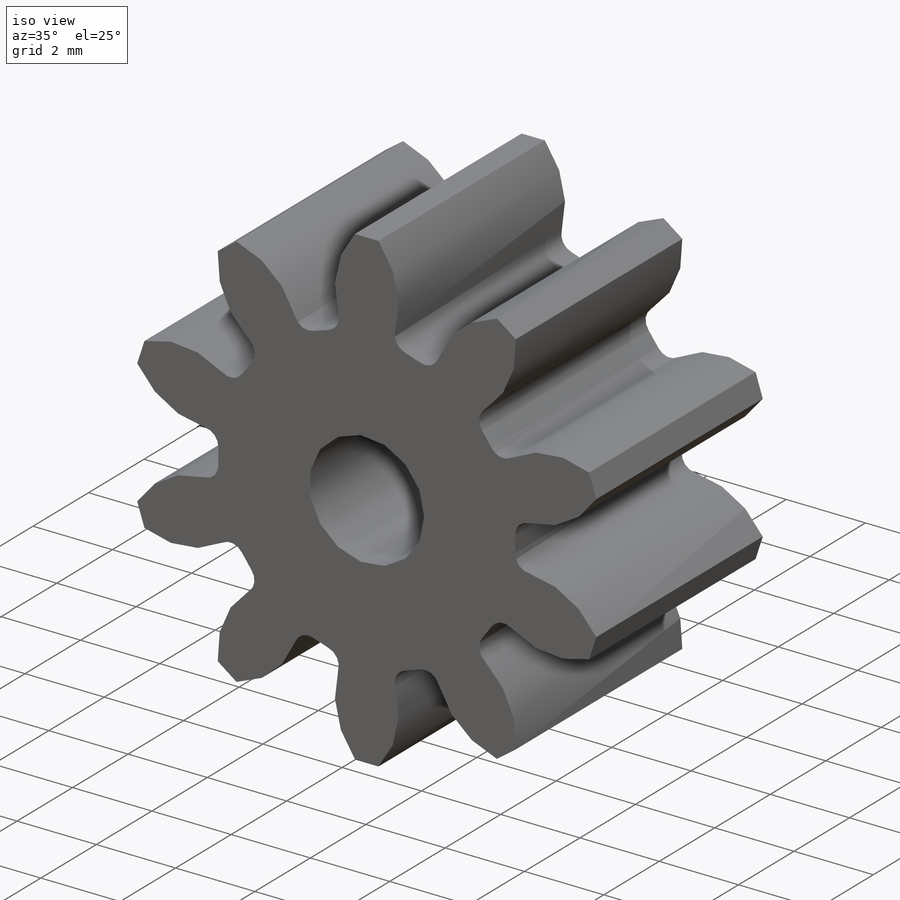
[diagram: iso view]
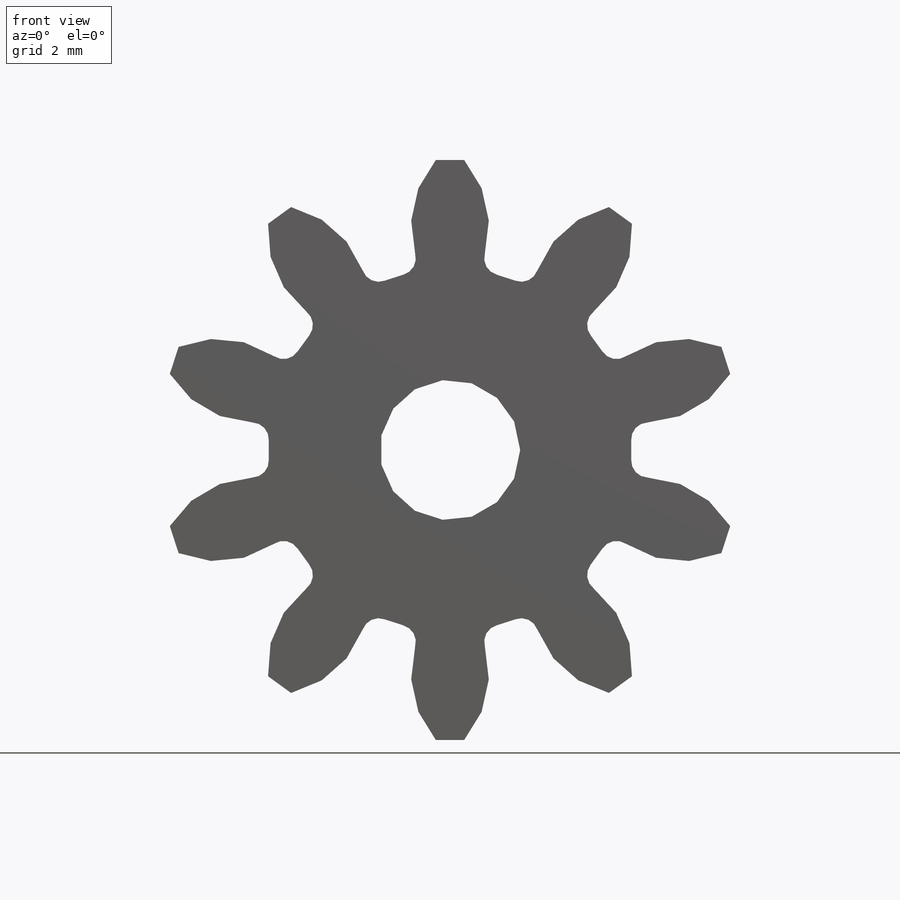
[diagram: front view]
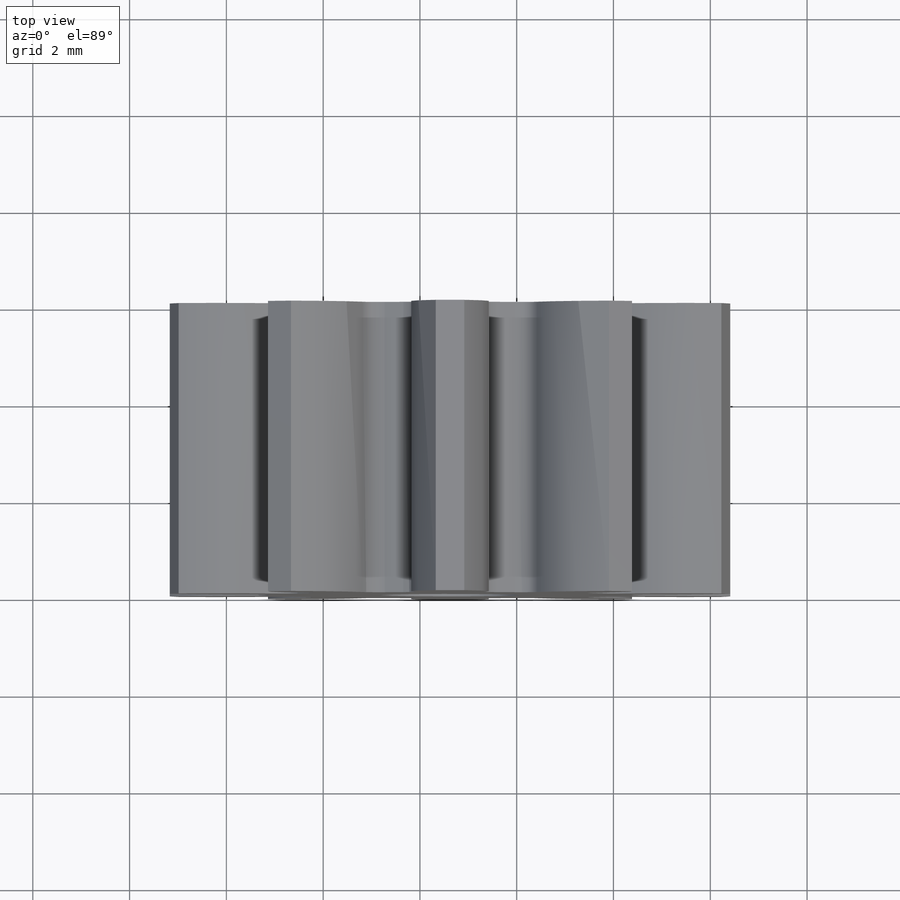
[diagram: top view]
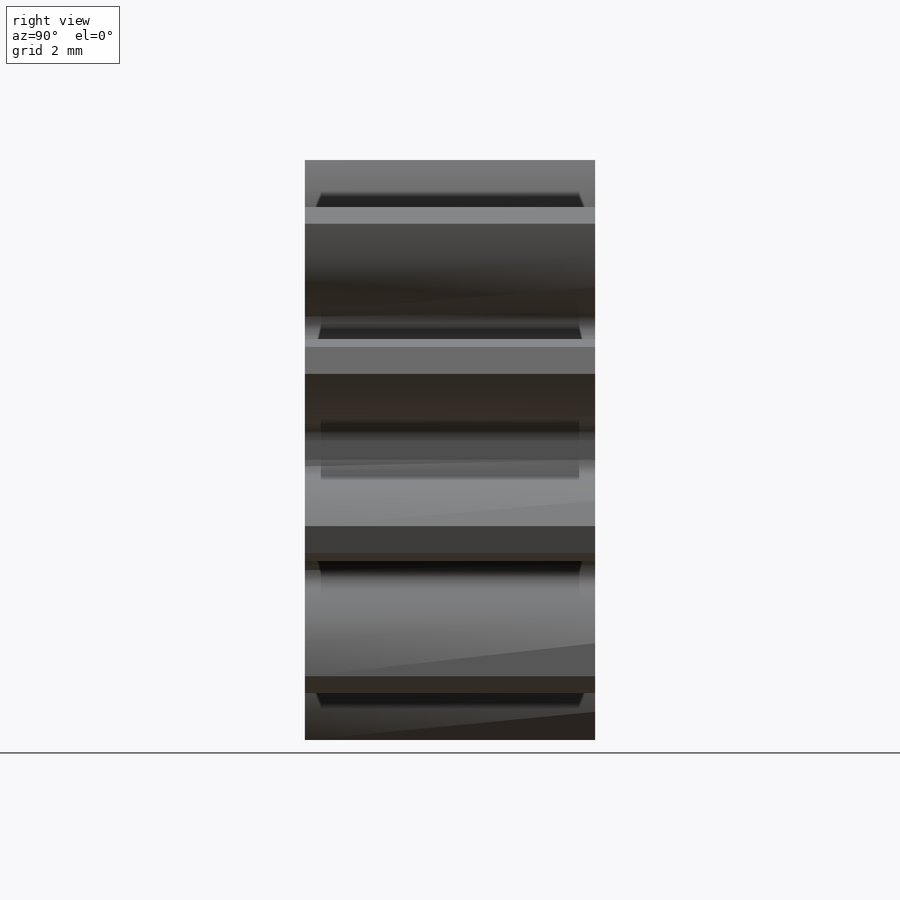
[diagram: right view]
SOLIDWORKS PART (.sldprt)
format: sldprt  version: not decoded by parser v0  size: 290,816 bytes
history: native  units: mm
features: sketch x4, plane x3, material x1, extrude x1, fillet x1, pattern_circular x1, cut_extrude x1 + 1 further entry (+7 scaffold rows collapsed)
feature tree (20):
  scaffold x7  (default folders/planes/origin — collapsed)
  material  "Matériau <non spécifié>"
  "Corps de surface"
  plane  "Plane1"
  plane  "Plane2"
  plane  "Plane3"
  sketch  "Esquisse4"
  sketch  "Parametres"  dims[Z=10.0mm m=1.0mm Alpha=20.0mm Alpha_rad=~0.349066mm PI=~3.141593mm R=5.0mm RT=6.0mm RP=3.75mm Rb=~4.698463mm E=~1.570796mm Eb=~1.616121mm As=~0.671198mm Et=~0.587713mm Ap=18.0mm Ab=~19.707917mm At=~5.612244mm k=6.0mm]
  sketch  "Esquisse3"  dims[c1.D7=~26.109396mm c1.D1=~29.376396mm c2.D1=~5.114687deg c2.D2=~29.376396mm c3.D2=~11.734276deg c3.D3=~29.376396mm c4.D3=~14.703049deg c4.D4=~17.959793mm c5.D4=36.0deg c5.D5=~4.698463mm c5.D6=5.0mm c5.D7=~26.109403mm c5.D1=~26.109403mm c6.D1=~174.885313deg c7.D1=~26.109403mm c8.D1=~5.114687deg c9.D1=6.0mm c9.D2=~17.959793mm c10.D2=~9.853958deg c10.D3=~22.451883mm c11.D3=9.0deg c11.D7=~26.109403mm c12.D7=~5.114687deg c13.D7=~29.376396mm c14.D7=~5.114687deg c15.D7=~29.376396mm c16.D7=~5.114687deg c17.D7=~29.376396mm c18.D7=~5.114687deg c19.D7=~29.376396mm c20.D7=~5.114687deg c21.D7=~29.376396mm c22.D7=~2.806122deg c22.D8=3.75mm]
  extrude  "Boss.-Extru.1"  Depth=6mm
  fillet  "Congé1"  Radius=0.35mm
  pattern_circular  "Répétition circulaire4"  Count=10 Angle=36deg
  sketch  "Esquisse5"  dims[D1=~1.130423mm]
  cut_extrude  "Enlèv. mat.-Extru.1"  [1 undecoded]
decode coverage: 6 of 8 modeling features carry decoded parameters; 1 rows unclassified (native names shown)
note: ~ marks probable driven/reference dimensions
note: 1 parameter value undecoded
note: suppression state not decoded; provenance and decode notes live in map.json
